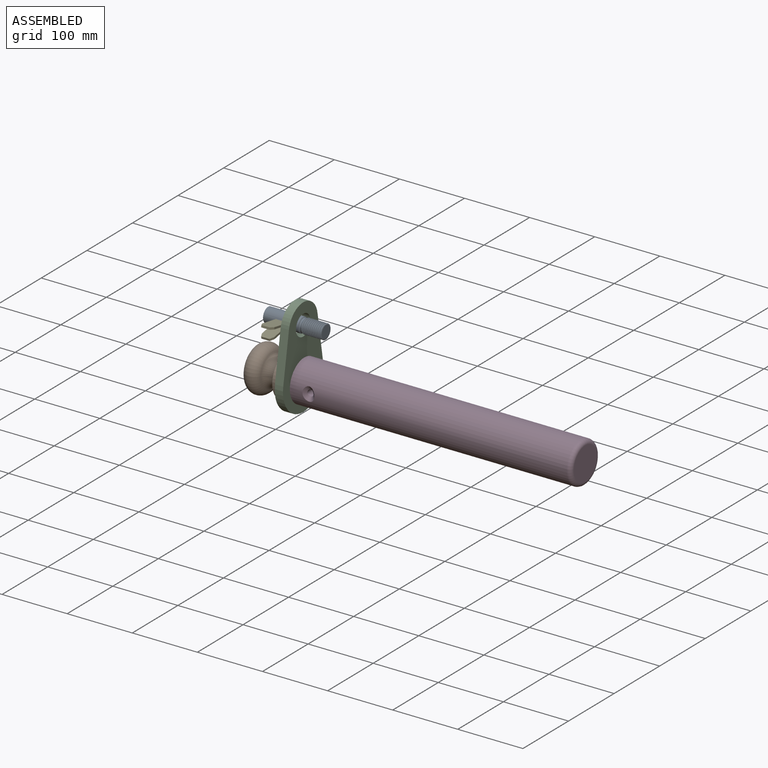
[diagram: assembled view]
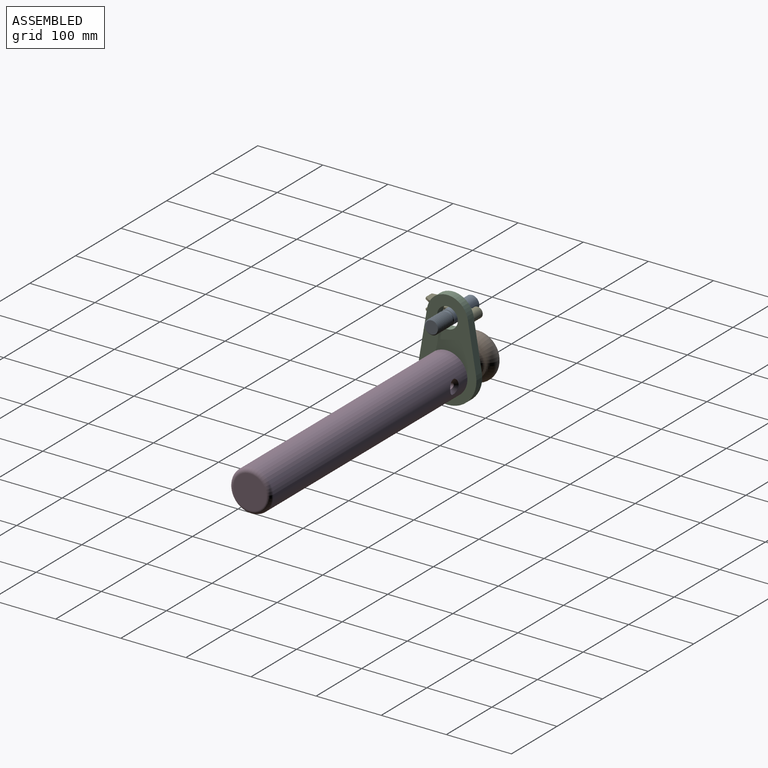
[diagram: assembled view, second angle]
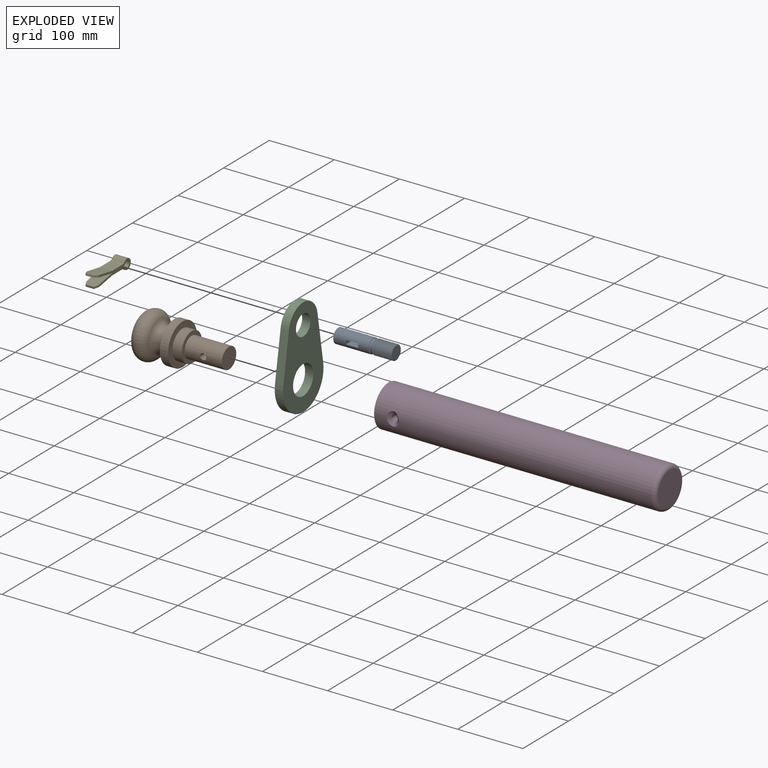
[diagram: exploded view]
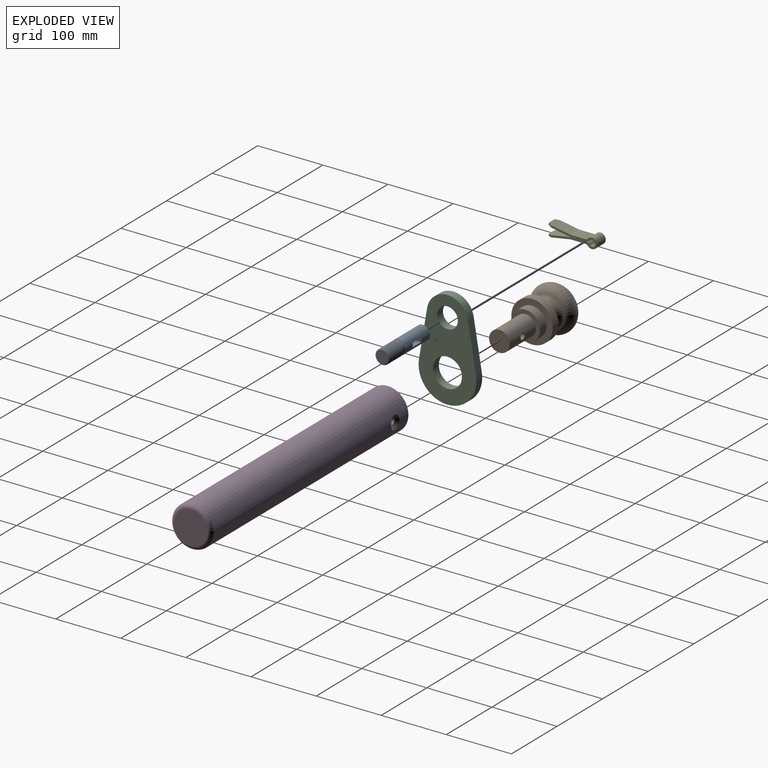
[diagram: exploded view, second angle]
ASSEMBLY  parts=5 mates=8
PART A: 53 faces, bbox 88.9x24.4x24.4 mm
  f0: cylinder r=11.11mm len=53.98mm, axis (-1,0,0), area 3523.3mm2, adj f1,f2,f49,f50,f51,f52
  f1: torus R=11.29mm, axis (-1,0,0), area 303mm2, adj f0,f48
  f2: plane 22.23x22.23mm, normal (-1,0,0), area 387.9mm2, adj f0
  f3: plane 19.47x19.47mm, normal (1,0,0), area 297.8mm2, adj f4
  f4: cone r=10.9mm half-angle=62.5deg, axis (-1,0,0), area 85.4mm2, adj f3,f5
  f5: torus R=10.73mm, axis (-1,0,0), area 58.6mm2, adj f4,f6
  f6: cone r=10.9mm half-angle=62.5deg, axis (1,0,0), area 100.5mm2, adj f5,f7
  f7: torus R=9.69mm, axis (-1,0,0), area 49.8mm2, adj f6,f8
  f8: cone r=10.9mm half-angle=62.5deg, axis (-1,0,0), area 100.5mm2, adj f7,f9
  f9: torus R=10.73mm, axis (-1,0,0), area 58.6mm2, adj f8,f10
  f10: cone r=10.9mm half-angle=62.5deg, axis (1,0,0), area 100.5mm2, adj f9,f11
  f11: torus R=9.69mm, axis (-1,0,0), area 49.8mm2, adj f10,f12
  f12: cone r=10.9mm half-angle=62.5deg, axis (-1,0,0), area 100.5mm2, adj f11,f13
  f13: torus R=10.73mm, axis (-1,0,0), area 58.6mm2, adj f12,f14
  f14: cone r=10.9mm half-angle=62.5deg, axis (1,0,0), area 100.5mm2, adj f13,f15
  f15: torus R=9.69mm, axis (-1,0,0), area 49.8mm2, adj f14,f16
  f16: cone r=10.9mm half-angle=62.5deg, axis (-1,0,0), area 100.5mm2, adj f15,f17
  f17: torus R=10.73mm, axis (-1,0,0), area 58.6mm2, adj f16,f18
  f18: cone r=10.9mm half-angle=62.5deg, axis (1,0,0), area 100.5mm2, adj f17,f19
  f19: torus R=9.69mm, axis (-1,0,0), area 49.8mm2, adj f18,f20
  f20: cone r=10.9mm half-angle=62.5deg, axis (-1,0,0), area 100.5mm2, adj f19,f21
  f21: torus R=10.73mm, axis (-1,0,0), area 58.6mm2, adj f20,f22
  f22: cone r=10.9mm half-angle=62.5deg, axis (1,0,0), area 100.5mm2, adj f21,f23
  f23: torus R=9.69mm, axis (-1,0,0), area 49.8mm2, adj f22,f24
  f24: cone r=10.9mm half-angle=62.5deg, axis (-1,0,0), area 100.5mm2, adj f23,f25
  f25: torus R=10.73mm, axis (-1,0,0), area 58.6mm2, adj f24,f26
  f26: cone r=10.9mm half-angle=62.5deg, axis (1,0,0), area 100.5mm2, adj f25,f27
  f27: torus R=9.69mm, axis (-1,0,0), area 49.8mm2, adj f26,f28
  f28: cone r=10.9mm half-angle=62.5deg, axis (-1,0,0), area 100.5mm2, adj f27,f29
  f29: torus R=10.73mm, axis (-1,0,0), area 58.6mm2, adj f28,f30
  f30: cone r=10.9mm half-angle=62.5deg, axis (1,0,0), area 100.5mm2, adj f29,f31
  f31: torus R=9.69mm, axis (-1,0,0), area 49.8mm2, adj f30,f32
  f32: cone r=10.9mm half-angle=62.5deg, axis (-1,0,0), area 100.5mm2, adj f31,f33
  f33: torus R=10.73mm, axis (-1,0,0), area 58.6mm2, adj f32,f34
  f34: cone r=10.9mm half-angle=62.5deg, axis (1,0,0), area 100.5mm2, adj f33,f35
  f35: torus R=9.69mm, axis (-1,0,0), area 49.8mm2, adj f34,f36
  f36: cone r=10.9mm half-angle=62.5deg, axis (-1,0,0), area 100.5mm2, adj f35,f37
  f37: torus R=10.73mm, axis (-1,0,0), area 58.6mm2, adj f36,f38
  f38: cone r=10.9mm half-angle=62.5deg, axis (1,0,0), area 100.5mm2, adj f37,f39
  f39: torus R=9.69mm, axis (-1,0,0), area 49.8mm2, adj f38,f40
  f40: cone r=10.9mm half-angle=62.5deg, axis (-1,0,0), area 100.5mm2, adj f39,f41
  f41: torus R=10.73mm, axis (-1,0,0), area 58.6mm2, adj f40,f42
  f42: cone r=10.9mm half-angle=62.5deg, axis (1,0,0), area 100.5mm2, adj f41,f43
  f43: torus R=9.69mm, axis (-1,0,0), area 49.8mm2, adj f42,f44
  f44: cone r=10.9mm half-angle=62.5deg, axis (-1,0,0), area 100.5mm2, adj f43,f45
  f45: torus R=10.73mm, axis (-1,0,0), area 58.6mm2, adj f44,f46
  f46: cone r=10.9mm half-angle=62.5deg, axis (1,0,0), area 100.5mm2, adj f45,f47
  f47: torus R=9.69mm, axis (-1,0,0), area 49.8mm2, adj f46,f48
  f48: cone r=10.21mm half-angle=62.5deg, axis (-1,0,0), area 48.6mm2, adj f1,f47
  f49: plane 21.3x19.05mm, normal (0,0,-1), area 405.7mm2, adj f0,f50,f52
  f50: plane 22.23x6.35mm, normal (1,0,0), area 139.2mm2, adj f0,f49,f51
  f51: plane 21.3x19.05mm, normal (0,0,1), area 405.7mm2, adj f0,f50,f52
  f52: plane 22.23x6.35mm, normal (-1,0,0), area 139.2mm2, adj f0,f49,f51
PART B: 11 faces, bbox 77.9x77.9x134.9 mm
  f0: plane 31.75x31.75mm, normal (0,0,-1), area 791.7mm2, adj f1
  f1: cylinder r=15.88mm len=57.15mm, axis (0,0,1), area 5556.2mm2, adj f0,f2,f10
  f2: plane 44.45x44.45mm, normal (0,0,-1), area 760.1mm2, adj f1,f3
  f3: cylinder r=22.23mm len=44.45mm, axis (0,0,1), area 1995.2mm2, adj f2,f4
  f4: plane 63.5x63.5mm, normal (0,0,-1), area 1615.1mm2, adj f3,f5
  f5: cylinder r=31.75mm len=63.5mm, axis (0,0,1), area 2533.5mm2, adj f4,f6
  f6: plane 63.5x63.5mm, normal (0,0,1), area 710.3mm2, adj f5,f7
  f7: torus R=27.96mm, axis (0,0,1), area 4151.4mm2, adj f6,f8
  f8: torus R=21.81mm, axis (0,0,1), area 6829.5mm2, adj f7,f9
  f9: sphere r=100.61mm, area 2007.1mm2, adj f8
  f10: cylinder r=4.76mm len=31.75mm, axis (0,-1,0), area 928.3mm2, adj f1
PART C: 8 faces, bbox 12.7x88.9x152.4 mm
  f0: cylinder r=31.75mm len=62.61mm, axis (-1,0,0), area 1131.7mm2, adj f1,f5,f6,f7
  f1: plane 74.08x12.7mm, normal (0,-0.99,0.17), area 954.2mm2, adj f0,f2,f6,f7
  f2: cylinder r=44.45mm len=88.9mm, axis (-1,0,0), area 1962.5mm2, adj f1,f5,f6,f7
  f3: cylinder r=22.23mm len=44.45mm, axis (-1,0,0), area 1773.5mm2, adj f6,f7
  f4: cylinder r=15.88mm len=31.75mm, axis (-1,0,0), area 1266.8mm2, adj f6,f7
  f5: plane 74.08x12.7mm, normal (0,0.99,0.17), area 954.2mm2, adj f0,f2,f6,f7
  f6: plane 152.4x88.9mm, normal (1,0,0), area 8230.8mm2, adj f0,f1,f2,f3,f4,f5
  f7: plane 152.4x88.9mm, normal (-1,0,0), area 8230.8mm2, adj f0,f1,f2,f3,f4,f5
PART D: 10 faces, bbox 431.8x68.7x68.7 mm
  f0: cylinder r=31.75mm len=425.45mm, axis (-1,0,0), area 84256.8mm2, adj f4,f5,f8,f9
  f1: cylinder r=15.88mm len=57.15mm, axis (-1,0,0), area 5556.4mm2, adj f2,f4,f6,f7
  f2: plane 31.75x31.75mm, normal (-1,0,0), area 791.7mm2, adj f1
  f3: plane 50.8x50.8mm, normal (1,0,0), area 2026.8mm2, adj f5
  f4: plane 63.5x63.5mm, normal (-1,0,0), area 2375.2mm2, adj f0,f1
  f5: torus R=25.4mm, axis (-1,0,0), area 1845.2mm2, adj f0,f3
  f6: cylinder r=4.76mm len=10.67mm, axis (0,1,0), area 319.3mm2, adj f1,f9
  f7: cylinder r=4.76mm len=10.67mm, axis (0,1,0), area 319.3mm2, adj f1,f8
  f8: bspline ~21.17x18.26mm, area 309.8mm2, adj f0,f7
  f9: bspline ~21.17x18.26mm, area 309.8mm2, adj f0,f6
PART E: 22 faces, bbox 76.7x18.8x19.1 mm
  f0: plane 35.93x19.05mm, normal (0.17,-0.98,0), area 674.8mm2, adj f1,f3,f4,f10,f20,f21
  f1: plane 12.7x3.05mm, normal (0.98,0.17,0), area 39.4mm2, adj f0,f2,f20,f21
  f2: plane 35.39x19.05mm, normal (-0.17,0.98,0), area 664.4mm2, adj f1,f3,f4,f11,f20,f21
  f3: plane 70.49x16.62mm, normal (0,0,1), area 467.9mm2, adj f0,f2,f5,f7,f8,f9,f10,f11
  f4: plane 70.49x16.62mm, normal (0,0,-1), area 467.9mm2, adj f0,f2,f5,f7,f8,f9,f10,f11
  f5: plane 35.39x19.05mm, normal (-0.17,-0.98,0), area 664.4mm2, adj f3,f4,f6,f15,f18,f19
  f6: plane 12.7x3.05mm, normal (0.98,-0.17,0), area 39.4mm2, adj f5,f7,f18,f19
  f7: plane 35.93x19.05mm, normal (0.17,0.98,0), area 674.8mm2, adj f3,f4,f6,f16,f18,f19
  f8: cylinder r=4.76mm len=19.05mm, axis (0,0,-1), area 459.2mm2, adj f3,f4,f9,f17
  f9: cylinder r=6.35mm len=19.05mm, axis (0,0,-1), area 116.1mm2, adj f3,f4,f8,f10
  f10: plane 23.77x19.05mm, normal (0,-1,0), area 452.9mm2, adj f0,f3,f4,f9
  f11: plane 22.23x19.05mm, normal (0,1,0), area 423.4mm2, adj f2,f3,f4,f12
  f12: cylinder r=6.35mm len=19.05mm, axis (0,0,-1), area 101.7mm2, adj f3,f4,f11,f13
  f13: cylinder r=7.94mm len=19.05mm, axis (0,0,-1), area 729.4mm2, adj f3,f4,f12,f14
  f14: cylinder r=6.35mm len=19.05mm, axis (0,0,-1), area 101.7mm2, adj f3,f4,f13,f15
  f15: plane 22.23x19.05mm, normal (0,-1,0), area 423.4mm2, adj f3,f4,f5,f14
  f16: plane 23.77x19.05mm, normal (0,1,0), area 452.9mm2, adj f3,f4,f7,f17
  f17: cylinder r=6.35mm len=19.05mm, axis (0,0,-1), area 116.1mm2, adj f3,f4,f8,f16
  f18: plane 6.79x4.16mm, normal (0.44,-0.08,-0.89), area 22mm2, adj f4,f5,f6,f7
  f19: plane 6.79x4.16mm, normal (0.44,-0.08,0.89), area 22mm2, adj f3,f5,f6,f7
  f20: plane 6.79x4.16mm, normal (0.44,0.08,-0.89), area 22mm2, adj f0,f1,f2,f4
  f21: plane 6.79x4.16mm, normal (0.44,0.08,0.89), area 22mm2, adj f0,f1,f2,f3
PLACE A t=(-145.07,147.91,54.33)mm
PLACE B rot(axis=(0,-1,0),90deg) t=(-32.35,147.91,-21.87)mm
PLACE C t=(-103.79,147.91,-21.87)mm
PLACE D t=(-89.5,147.91,-21.87)mm
PLACE E rot(axis=(0.58,-0.58,-0.58),120deg) t=(-106.97,169.7,54.33)mm
MATE slider B.f10 <-> D.f6  axis (0,-1,0) through (-60.93,131.84,-21.87)mm
MATE planar E.f3 <-> A.f50  axis (-1,0,0) through (-126.02,148.71,54.36)mm
MATE slider B.f1 <-> D.f0  axis (-1,0,0) through (-32.35,147.91,-21.87)mm
MATE planar A.f0 <-> C.f6  axis (-1,0,0) through (-91.09,147.91,54.33)mm
MATE planar C.f7 <-> B.f7  axis (-1,0,0) through (-103.79,147.91,6.7)mm
MATE slider A.f0 <-> C.f4  axis (-1,0,0) through (-118.08,147.91,54.33)mm
MATE planar E.f15 <-> A.f51  axis (0,0,-1) through (-116.49,147.94,51.16)mm
MATE slider B.f1 <-> C.f3  axis (-1,0,0) through (-103.79,147.91,-21.87)mm
